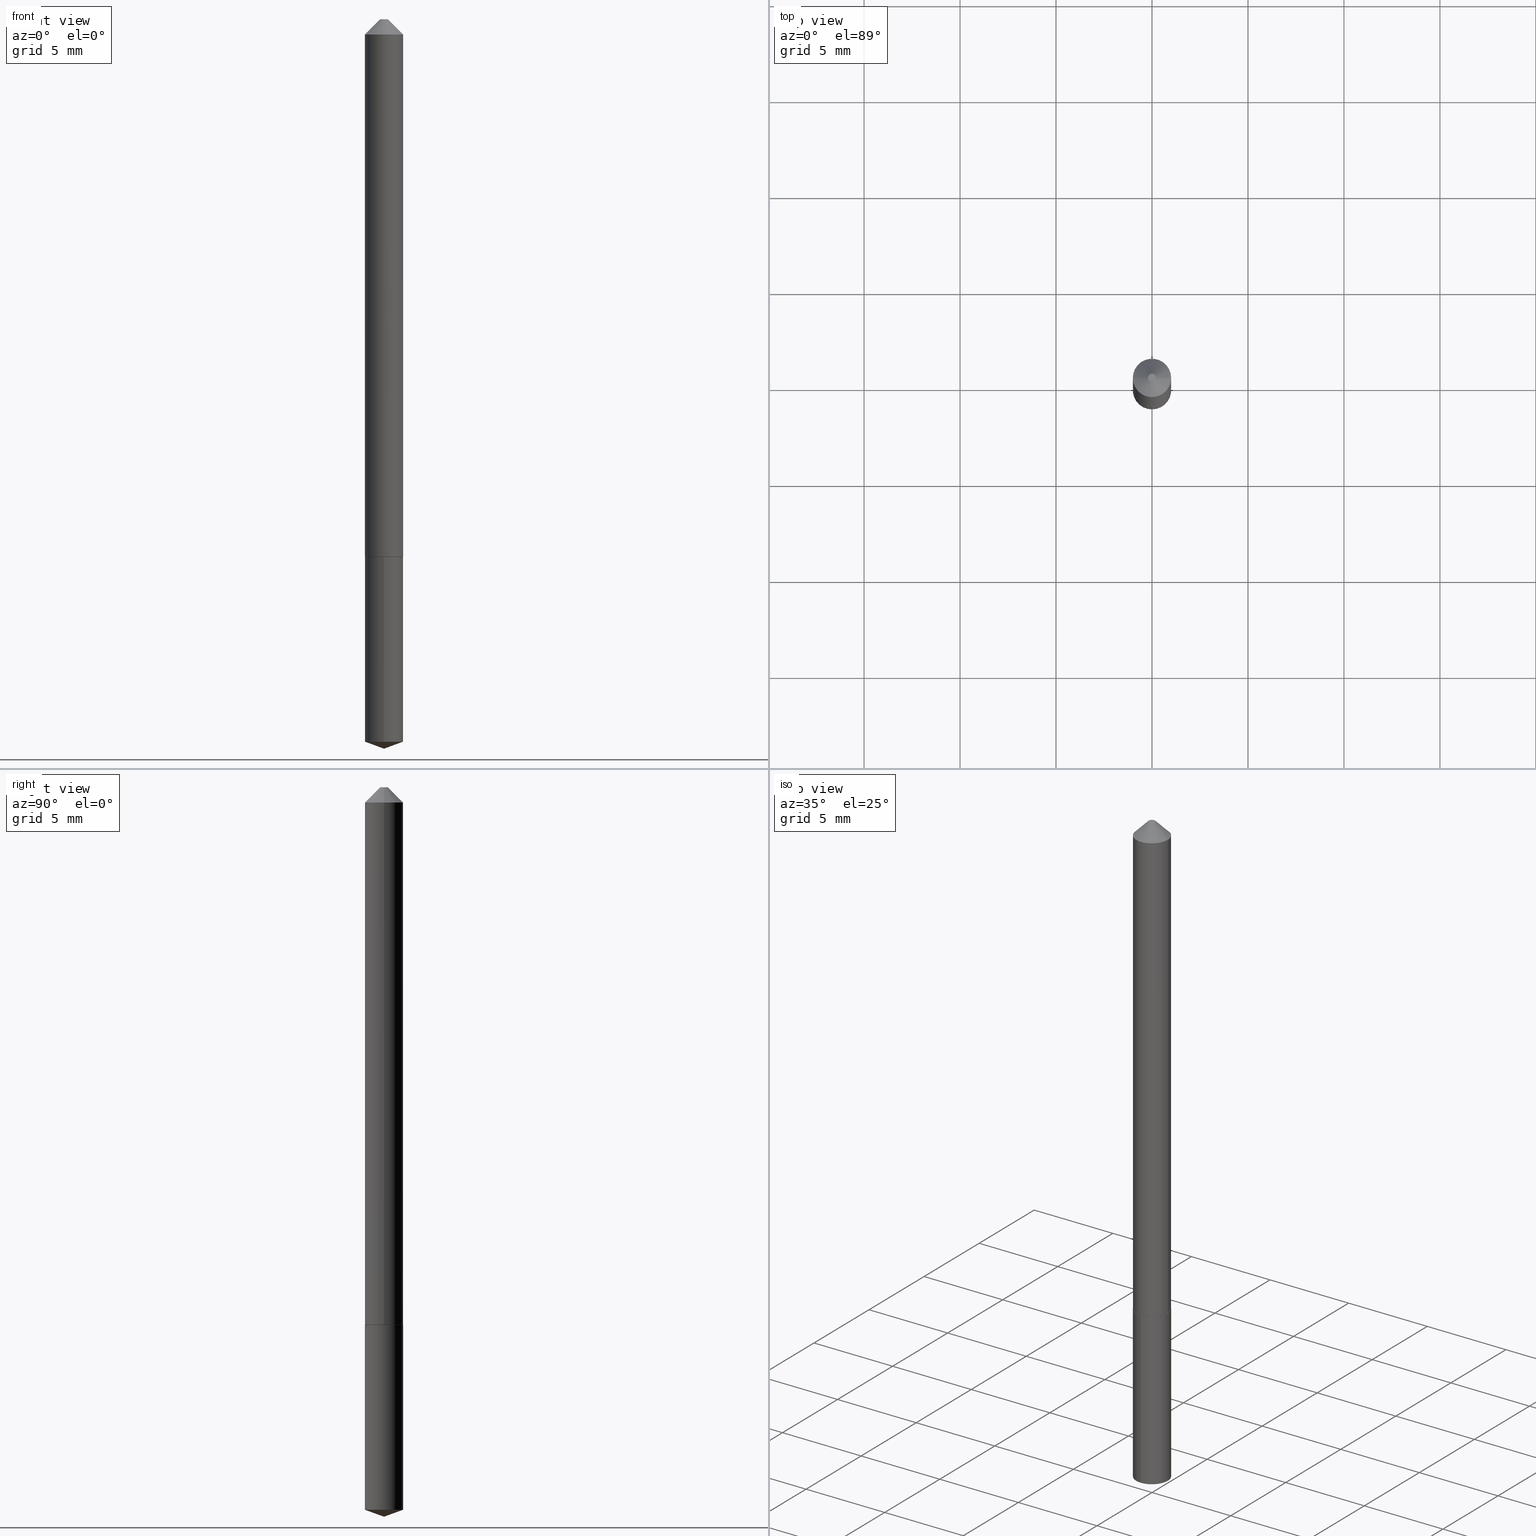
[diagram: canonical four-view strip — front | top / right | iso, engineering-drawing reading convention]
A machine part, canonical four-view strip (front | top / right | iso — engineering-drawing reading convention). The complete STEP part file that produces these views, byte-faithful:
ISO-10303-21;
HEADER;
FILE_DESCRIPTION (( 'STEP AP203' ),
    '1' );
FILE_NAME ('66005.STEP',
    '2024-04-23T11:37:47',
    ( '' ),
    ( '' ),
    'SwSTEP 2.0',
    'SolidWorks 2023',
    '' );
FILE_SCHEMA (( 'CONFIG_CONTROL_DESIGN' ));
ENDSEC;

DATA;
#1 = VERTEX_POINT ( 'NONE', #250 ) ;
#2 = ADVANCED_FACE ( 'NONE', ( #279 ), #142, .T. ) ;
#3 = FACE_OUTER_BOUND ( 'NONE', #236, .T. ) ;
#4 = AXIS2_PLACEMENT_3D ( 'NONE', #76, #204, #370 ) ;
#5 = ORIENTED_EDGE ( 'NONE', *, *, #151, .T. ) ;
#6 = ORIENTED_EDGE ( 'NONE', *, *, #266, .T. ) ;
#7 = PERSON_AND_ORGANIZATION ( #308, #355 ) ;
#8 = DESIGN_CONTEXT ( 'detailed design', #134, 'design' ) ;
#9 = PLANE ( 'NONE',  #66 ) ;
#10 = DIRECTION ( 'NONE',  ( -2.438088387897960049E-29, 3.491481338843145188E-15, 1.000000000000000000 ) ) ;
#11 = PERSON_AND_ORGANIZATION ( #308, #355 ) ;
#12 = CARTESIAN_POINT ( 'NONE',  ( 7.642090019328602662E-31, -1.091087918388490267E-16, -0.03125000000000020817 ) ) ;
#13 = APPROVAL_ROLE ( '' ) ;
#14 = EDGE_CURVE ( 'NONE', #25, #93, #382, .T. ) ;
#15 = ADVANCED_FACE ( 'NONE', ( #309 ), #219, .F. ) ;
#16 = CYLINDRICAL_SURFACE ( 'NONE', #126, 0.03935000000000000303 ) ;
#17 = AXIS2_PLACEMENT_3D ( 'NONE', #285, #187, #337 ) ;
#18 = CARTESIAN_POINT ( 'NONE',  ( 0.000000000000000000, 0.000000000000000000, 0.000000000000000000 ) ) ;
#19 = ADVANCED_FACE ( 'NONE', ( #246 ), #32, .T. ) ;
#20 = CARTESIAN_POINT ( 'NONE',  ( 2.694662077535402229E-29, -3.847263287271262604E-15, -1.101900000000000102 ) ) ;
#21 = AXIS2_PLACEMENT_3D ( 'NONE', #260, #234, #383 ) ;
#22 = CIRCLE ( 'NONE', #67, 0.03935000000000012793 ) ;
#23 = ORIENTED_EDGE ( 'NONE', *, *, #292, .F. ) ;
#24 = DIRECTION ( 'NONE',  ( 1.000000000000000000, -6.982962677686272233E-15, 0.000000000000000000 ) ) ;
#25 = VERTEX_POINT ( 'NONE', #63 ) ;
#26 =( CONVERSION_BASED_UNIT ( 'INCH', #145 ) LENGTH_UNIT ( ) NAMED_UNIT ( #321 ) );
#27 = ORIENTED_EDGE ( 'NONE', *, *, #354, .F. ) ;
#28 = AXIS2_PLACEMENT_3D ( 'NONE', #12, #89, #92 ) ;
#29 = ORIENTED_EDGE ( 'NONE', *, *, #232, .F. ) ;
#30 = DIRECTION ( 'NONE',  ( -2.444204879633820850E-29, 3.493291353602861629E-15, 1.000000000000000000 ) ) ;
#31 = MANIFOLD_SOLID_BREP ( 'Body-Move/Copy2[2]', #75 ) ;
#32 = CYLINDRICAL_SURFACE ( 'NONE', #231, 0.03935000000000007242 ) ;
#33 = DIRECTION ( 'NONE',  ( -2.444204879633820850E-29, 3.493291353602861629E-15, 1.000000000000000000 ) ) ;
#34 = CC_DESIGN_APPROVAL ( #248, ( #374 ) ) ;
#35 = APPLICATION_PROTOCOL_DEFINITION ( 'international standard', 'config_control_design', 1994, #209 ) ;
#36 = DIRECTION ( 'NONE',  ( 1.000000000000000000, -6.982962677686272233E-15, 0.000000000000000000 ) ) ;
#37 = FACE_OUTER_BOUND ( 'NONE', #171, .T. ) ;
#38 = EDGE_CURVE ( 'NONE', #347, #53, #366, .T. ) ;
#39 = CARTESIAN_POINT ( 'NONE',  ( 2.795985665216356337E-16, 0.03934999999999615194, -1.102400000000000047 ) ) ;
#40 = DIRECTION ( 'NONE',  ( 1.000000000000000000, 0.000000000000000000, 0.000000000000000000 ) ) ;
#41 = AXIS2_PLACEMENT_3D ( 'NONE', #20, #379, #108 ) ;
#42 = AXIS2_PLACEMENT_3D ( 'NONE', #60, #306, #389 ) ;
#43 = PERSON_AND_ORGANIZATION_ROLE ( 'creator' ) ;
#44 = CC_DESIGN_PERSON_AND_ORGANIZATION_ASSIGNMENT ( #11, #101, ( #374 ) ) ;
#45 = CARTESIAN_POINT ( 'NONE',  ( 2.695884811938494470E-29, -3.849009027940684107E-15, -1.102400000000000047 ) ) ;
#46 = VECTOR ( 'NONE', #330, 39.37007874015748143 ) ;
#47 = DIRECTION ( 'NONE',  ( -6.982962677686266711E-15, -1.000000000000000000, 6.942434545525446301E-15 ) ) ;
#48 = DIRECTION ( 'NONE',  ( -2.444204879633820850E-29, 3.493291353602861629E-15, 1.000000000000000000 ) ) ;
#49 = CARTESIAN_POINT ( 'NONE',  ( -0.03935000000000012793, -3.567664720749661631E-15, -1.101900000000000102 ) ) ;
#50 = LINE ( 'NONE', #210, #46 ) ;
#51 = EDGE_LOOP ( 'NONE', ( #301, #146 ) ) ;
#52 = CARTESIAN_POINT ( 'NONE',  ( 2.694662077535402229E-29, -3.847263287271262604E-15, -1.101900000000000102 ) ) ;
#53 = VERTEX_POINT ( 'NONE', #192 ) ;
#54 = ORIENTED_EDGE ( 'NONE', *, *, #203, .F. ) ;
#55 = EDGE_LOOP ( 'NONE', ( #329, #122, #300, #183 ) ) ;
#56 = VECTOR ( 'NONE', #33, 39.37007874015748143 ) ;
#57 = PRODUCT_RELATED_PRODUCT_CATEGORY ( 'detail', '', ( #252 ) ) ;
#58 = AXIS2_PLACEMENT_3D ( 'NONE', #62, #214, #178 ) ;
#59 = FACE_OUTER_BOUND ( 'NONE', #55, .T. ) ;
#60 = CARTESIAN_POINT ( 'NONE',  ( 7.642090019328602662E-31, -1.091087918388490267E-16, -0.03125000000000020817 ) ) ;
#61 = FACE_OUTER_BOUND ( 'NONE', #213, .T. ) ;
#62 = CARTESIAN_POINT ( 'NONE',  ( 0.000000000000000000, 0.000000000000000000, 0.000000000000000000 ) ) ;
#63 = CARTESIAN_POINT ( 'NONE',  ( -2.747795813669276519E-16, -0.03935000000000385412, -1.102399999999999824 ) ) ;
#64 = APPROVAL_STATUS ( 'not_yet_approved' ) ;
#65 = ORIENTED_EDGE ( 'NONE', *, *, #325, .T. ) ;
#66 = AXIS2_PLACEMENT_3D ( 'NONE', #159, #10, #307 ) ;
#67 = AXIS2_PLACEMENT_3D ( 'NONE', #185, #298, #368 ) ;
#68 = APPROVAL_ROLE ( '' ) ;
#69 = ADVANCED_FACE ( 'NONE', ( #71 ), #257, .T. ) ;
#70 = DIRECTION ( 'NONE',  ( -2.444204879633820850E-29, 3.493291353602861629E-15, 1.000000000000000000 ) ) ;
#71 = FACE_OUTER_BOUND ( 'NONE', #273, .T. ) ;
#72 = PERSON_AND_ORGANIZATION_ROLE ( 'design_owner' ) ;
#73 = EDGE_CURVE ( 'NONE', #390, #140, #194, .T. ) ;
#74 = CARTESIAN_POINT ( 'NONE',  ( 0.000000000000000000, 0.000000000000000000, 0.000000000000000000 ) ) ;
#75 = CLOSED_SHELL ( 'NONE', ( #197, #19, #241, #107, #2, #362, #123, #15 ) ) ;
#76 = CARTESIAN_POINT ( 'NONE',  ( 7.642090019328602662E-31, -1.091087918388490267E-16, -0.03125000000000020817 ) ) ;
#77 = DIRECTION ( 'NONE',  ( 1.000000000000000000, -6.982962677686267499E-15, 4.876176775795936914E-29 ) ) ;
#78 = CC_DESIGN_APPROVAL ( #128, ( #359 ) ) ;
#79 = ADVANCED_FACE ( 'NONE', ( #37 ), #114, .T. ) ;
#80 = CALENDAR_DATE ( 2024, 23, 4 ) ;
#81 = DIRECTION ( 'NONE',  ( -6.982962677686266711E-15, -1.000000000000000000, 3.471217272762723151E-15 ) ) ;
#82 = CARTESIAN_POINT ( 'NONE',  ( 3.623161811729646376E-29, -5.174286116107908423E-15, -1.481777771281625133 ) ) ;
#83 = ORIENTED_EDGE ( 'NONE', *, *, #169, .T. ) ;
#84 = CC_DESIGN_PERSON_AND_ORGANIZATION_ASSIGNMENT ( #313, #43, ( #374 ) ) ;
#85 = CARTESIAN_POINT ( 'NONE',  ( -0.03935000000000000997, -1.698587473033454879E-15, -0.03125000000000020817 ) ) ;
#86 = CIRCLE ( 'NONE', #28, 0.03935000000000000997 ) ;
#87 = ORIENTED_EDGE ( 'NONE', *, *, #73, .F. ) ;
#88 = PRODUCT_DEFINITION ( 'UNKNOWN', '', #374, #8 ) ;
#89 = DIRECTION ( 'NONE',  ( -2.445468806185136597E-29, 3.491481338843145583E-15, 1.000000000000000000 ) ) ;
#90 = ORIENTED_EDGE ( 'NONE', *, *, #203, .T. ) ;
#91 = VECTOR ( 'NONE', #384, 39.37007874015748143 ) ;
#92 = DIRECTION ( 'NONE',  ( 1.000000000000000000, -6.982962677686266711E-15, 0.000000000000000000 ) ) ;
#93 = VERTEX_POINT ( 'NONE', #39 ) ;
#94 = EDGE_LOOP ( 'NONE', ( #363, #297 ) ) ;
#95 = CARTESIAN_POINT ( 'NONE',  ( 0.000000000000000000, 0.000000000000000000, 0.000000000000000000 ) ) ;
#96 = EDGE_CURVE ( 'NONE', #53, #93, #281, .T. ) ;
#97 = DIRECTION ( 'NONE',  ( 2.438088387897960049E-29, -3.491481338843145188E-15, -1.000000000000000000 ) ) ;
#98 = AXIS2_PLACEMENT_3D ( 'NONE', #291, #356, #207 ) ;
#99 = PERSON_AND_ORGANIZATION_ROLE ( 'classification_officer' ) ;
#100 = DIRECTION ( 'NONE',  ( -2.445468806185136597E-29, 3.491481338843145583E-15, 1.000000000000000000 ) ) ;
#101 = PERSON_AND_ORGANIZATION_ROLE ( 'design_supplier' ) ;
#102 = APPROVAL_ROLE ( '' ) ;
#103 = LINE ( 'NONE', #351, #269 ) ;
#104 = AXIS2_PLACEMENT_3D ( 'NONE', #369, #97, #225 ) ;
#105 = LOCAL_TIME ( 7, 37, 47.00000000000000000, #158 ) ;
#106 = DIRECTION ( 'NONE',  ( -2.444204879633820850E-29, 3.493291353602861629E-15, 1.000000000000000000 ) ) ;
#107 = ADVANCED_FACE ( 'NONE', ( #61 ), #9, .F. ) ;
#108 = DIRECTION ( 'NONE',  ( 1.000000000000000000, -6.982962677686272233E-15, 0.000000000000000000 ) ) ;
#109 = VECTOR ( 'NONE', #173, 39.37007874015748143 ) ;
#110 = LOCAL_TIME ( 7, 37, 47.00000000000000000, #315 ) ;
#111 = UNCERTAINTY_MEASURE_WITH_UNIT (LENGTH_MEASURE( 1.000000000000000082E-05 ), #26, 'distance_accuracy_value', 'NONE');
#112 = ORIENTED_EDGE ( 'NONE', *, *, #325, .F. ) ;
#113 = CARTESIAN_POINT ( 'NONE',  ( 0.03935000000000000997, -3.838883732058036724E-16, -0.03125000000000020817 ) ) ;
#114 = CONICAL_SURFACE ( 'NONE', #224, 108.1684023407347865, 1.221730476396035492 ) ;
#115 = ORIENTED_EDGE ( 'NONE', *, *, #342, .F. ) ;
#116 = DIRECTION ( 'NONE',  ( -2.445468806185136597E-29, 3.491481338843145583E-15, 1.000000000000000000 ) ) ;
#117 = ORIENTED_EDGE ( 'NONE', *, *, #341, .F. ) ;
#118 = CARTESIAN_POINT ( 'NONE',  ( 2.695884811938494470E-29, -3.849009027940684107E-15, -1.102400000000000047 ) ) ;
#119 = AXIS2_PLACEMENT_3D ( 'NONE', #52, #322, #24 ) ;
#120 = ORIENTED_EDGE ( 'NONE', *, *, #137, .F. ) ;
#121 = ADVANCED_BREP_SHAPE_REPRESENTATION ( '66005', ( #299, #31, #167 ), #336 ) ;
#122 = ORIENTED_EDGE ( 'NONE', *, *, #287, .T. ) ;
#123 = ADVANCED_FACE ( 'NONE', ( #3 ), #290, .T. ) ;
#124 = CARTESIAN_POINT ( 'NONE',  ( 2.695884811938494470E-29, -3.849009027940684107E-15, -1.102400000000000047 ) ) ;
#125 = ORIENTED_EDGE ( 'NONE', *, *, #14, .F. ) ;
#126 = AXIS2_PLACEMENT_3D ( 'NONE', #45, #358, #259 ) ;
#127 = APPLICATION_PROTOCOL_DEFINITION ( 'international standard', 'config_control_design', 1994, #134 ) ;
#128 = APPROVAL ( #288, 'UNSPECIFIED' ) ;
#129 = CARTESIAN_POINT ( 'NONE',  ( 3.623161811729646376E-29, -5.174286116107908423E-15, -1.481777771281625133 ) ) ;
#130 = CALENDAR_DATE ( 2024, 23, 4 ) ;
#131 = COORDINATED_UNIVERSAL_TIME_OFFSET ( 5, 0, .BEHIND. ) ;
#132 = VECTOR ( 'NONE', #388, 39.37007874015748143 ) ;
#133 = PLANE ( 'NONE',  #21 ) ;
#134 = APPLICATION_CONTEXT ( 'configuration controlled 3d designs of mechanical parts and assemblies' ) ;
#135 = DIRECTION ( 'NONE',  ( -1.000000000000000000, 6.982962677686266711E-15, 0.000000000000000000 ) ) ;
#136 = CIRCLE ( 'NONE', #263, 0.03885000000000012055 ) ;
#137 = EDGE_CURVE ( 'NONE', #140, #243, #86, .T. ) ;
#138 = ORIENTED_EDGE ( 'NONE', *, *, #380, .F. ) ;
#139 = CARTESIAN_POINT ( 'NONE',  ( 0.03935000000000007242, -2.747795813669550648E-16, 1.918775561275704227E-30 ) ) ;
#140 = VERTEX_POINT ( 'NONE', #113 ) ;
#141 = VERTEX_POINT ( 'NONE', #150 ) ;
#142 = CONICAL_SURFACE ( 'NONE', #166, 0.03935000000000012793, 0.7853981633975591903 ) ;
#143 = VERTEX_POINT ( 'NONE', #283 ) ;
#144 = EDGE_CURVE ( 'NONE', #153, #243, #50, .T. ) ;
#145 = LENGTH_MEASURE_WITH_UNIT ( LENGTH_MEASURE( 0.02539999999999999897 ), #270 );
#146 = ORIENTED_EDGE ( 'NONE', *, *, #354, .T. ) ;
#147 = DIRECTION ( 'NONE',  ( -2.445468806185136597E-29, 3.491481338843145583E-15, 1.000000000000000000 ) ) ;
#148 = ORIENTED_EDGE ( 'NONE', *, *, #342, .T. ) ;
#149 = CARTESIAN_POINT ( 'NONE',  ( 3.659586061796191617E-29, -5.222322473583018434E-15, -1.496099999999999985 ) ) ;
#150 = CARTESIAN_POINT ( 'NONE',  ( 3.656774920420159006E-29, -5.226313194125241346E-15, -1.496099999999999985 ) ) ;
#151 = EDGE_CURVE ( 'NONE', #143, #243, #177, .T. ) ;
#152 = CIRCLE ( 'NONE', #98, 0.03885000000000012055 ) ;
#153 = VERTEX_POINT ( 'NONE', #333 ) ;
#154 = APPROVAL_PERSON_ORGANIZATION ( #350, #128, #13 ) ;
#155 = DATE_AND_TIME ( #226, #328 ) ;
#156 = ORIENTED_EDGE ( 'NONE', *, *, #317, .F. ) ;
#157 = CARTESIAN_POINT ( 'NONE',  ( -9.257037029521033046E-28, 1.323068378198018489E-13, 37.87397874015748300 ) ) ;
#158 = COORDINATED_UNIVERSAL_TIME_OFFSET ( 5, 0, .BEHIND. ) ;
#159 = CARTESIAN_POINT ( 'NONE',  ( 2.695884811938494470E-29, -3.849009027940684107E-15, -1.102400000000000047 ) ) ;
#160 = PERSON_AND_ORGANIZATION_ROLE ( 'creator' ) ;
#161 = DIRECTION ( 'NONE',  ( -2.444204879633820850E-29, 3.493291353602861629E-15, 1.000000000000000000 ) ) ;
#162 = DATE_AND_TIME ( #245, #105 ) ;
#163 = LINE ( 'NONE', #256, #182 ) ;
#164 = ADVANCED_FACE ( 'NONE', ( #59 ), #305, .T. ) ;
#165 = APPROVAL_DATE_TIME ( #293, #128 ) ;
#166 = AXIS2_PLACEMENT_3D ( 'NONE', #343, #100, #36 ) ;
#167 = AXIS2_PLACEMENT_3D ( 'NONE', #74, #193, #40 ) ;
#168 = DIRECTION ( 'NONE',  ( -0.7071067811866259545, 7.493145998870638150E-15, 0.7071067811864690800 ) ) ;
#169 = EDGE_CURVE ( 'NONE', #141, #347, #103, .T. ) ;
#170 = FACE_OUTER_BOUND ( 'NONE', #277, .T. ) ;
#171 = EDGE_LOOP ( 'NONE', ( #357, #179, #237 ) ) ;
#172 = CONICAL_SURFACE ( 'NONE', #119, 0.03935000000000012793, 0.7853981633975591903 ) ;
#173 = DIRECTION ( 'NONE',  ( 0.7071067811866259545, -2.468850131083078659E-15, 0.7071067811864690800 ) ) ;
#174 = EDGE_LOOP ( 'NONE', ( #23, #148, #6, #156 ) ) ;
#175 = CARTESIAN_POINT ( 'NONE',  ( 0.000000000000000000, 0.000000000000000000, 0.000000000000000000 ) ) ;
#176 = ORIENTED_EDGE ( 'NONE', *, *, #292, .T. ) ;
#177 = LINE ( 'NONE', #364, #132 ) ;
#178 = DIRECTION ( 'NONE',  ( 1.000000000000000000, -6.982962677686267499E-15, 4.876176775795936914E-29 ) ) ;
#179 = ORIENTED_EDGE ( 'NONE', *, *, #341, .T. ) ;
#180 = EDGE_CURVE ( 'NONE', #347, #25, #163, .T. ) ;
#181 = FACE_OUTER_BOUND ( 'NONE', #276, .T. ) ;
#182 = VECTOR ( 'NONE', #161, 39.37007874015748143 ) ;
#183 = ORIENTED_EDGE ( 'NONE', *, *, #220, .F. ) ;
#184 = DIRECTION ( 'NONE',  ( -6.982962677686266711E-15, -1.000000000000000000, 3.475157955500677616E-15 ) ) ;
#185 = CARTESIAN_POINT ( 'NONE',  ( 2.694662077535402229E-29, -3.847263287271262604E-15, -1.101900000000000102 ) ) ;
#186 = APPROVAL ( #64, 'UNSPECIFIED' ) ;
#187 = DIRECTION ( 'NONE',  ( -2.444204879633820850E-29, 3.493291353602861629E-15, 1.000000000000000000 ) ) ;
#188 = COORDINATED_UNIVERSAL_TIME_OFFSET ( 5, 0, .BEHIND. ) ;
#189 = AXIS2_PLACEMENT_3D ( 'NONE', #118, #30, #275 ) ;
#190 = DIRECTION ( 'NONE',  ( -2.444204879633820850E-29, 3.493291353602861629E-15, 1.000000000000000000 ) ) ;
#191 = COORDINATED_UNIVERSAL_TIME_OFFSET ( 5, 0, .BEHIND. ) ;
#192 = CARTESIAN_POINT ( 'NONE',  ( 2.795985665216355844E-16, 0.03934999999999482662, -1.481777771281625355 ) ) ;
#193 = DIRECTION ( 'NONE',  ( 0.000000000000000000, 0.000000000000000000, 1.000000000000000000 ) ) ;
#194 = LINE ( 'NONE', #312, #386 ) ;
#195 = DIRECTION ( 'NONE',  ( -6.561838499445211896E-15, -0.9396926207859088720, 0.3420201433256674917 ) ) ;
#196 = PERSON_AND_ORGANIZATION ( #308, #355 ) ;
#197 = ADVANCED_FACE ( 'NONE', ( #371 ), #302, .T. ) ;
#198 = CC_DESIGN_DATE_AND_TIME_ASSIGNMENT ( #155, #286, ( #88 ) ) ;
#199 = FACE_OUTER_BOUND ( 'NONE', #360, .T. ) ;
#200 = CLOSED_SHELL ( 'NONE', ( #227, #79, #69, #164, #267 ) ) ;
#201 = APPROVAL_PERSON_ORGANIZATION ( #7, #248, #102 ) ;
#202 = LINE ( 'NONE', #235, #109 ) ;
#203 = EDGE_CURVE ( 'NONE', #1, #385, #152, .T. ) ;
#204 = DIRECTION ( 'NONE',  ( 2.445468806185136597E-29, -3.491481338843145583E-15, -1.000000000000000000 ) ) ;
#205 = ORIENTED_EDGE ( 'NONE', *, *, #266, .F. ) ;
#206 = AXIS2_PLACEMENT_3D ( 'NONE', #18, #294, #77 ) ;
#207 = DIRECTION ( 'NONE',  ( 1.000000000000000000, -6.982962677686260400E-15, 0.000000000000000000 ) ) ;
#208 = ORIENTED_EDGE ( 'NONE', *, *, #144, .F. ) ;
#209 = APPLICATION_CONTEXT ( 'configuration controlled 3d designs of mechanical parts and assemblies' ) ;
#210 = CARTESIAN_POINT ( 'NONE',  ( -0.03935000000000007242, 2.795985665215999377E-16, -1.935600958015308795E-30 ) ) ;
#211 = LINE ( 'NONE', #149, #318 ) ;
#212 = CC_DESIGN_PERSON_AND_ORGANIZATION_ASSIGNMENT ( #373, #99, ( #359 ) ) ;
#213 = EDGE_LOOP ( 'NONE', ( #54, #115 ) ) ;
#214 = DIRECTION ( 'NONE',  ( -2.445468806185136597E-29, 3.491481338843145583E-15, 1.000000000000000000 ) ) ;
#215 = ORIENTED_EDGE ( 'NONE', *, *, #348, .T. ) ;
#216 = AXIS2_PLACEMENT_3D ( 'NONE', #124, #190, #375 ) ;
#217 = AXIS2_PLACEMENT_3D ( 'NONE', #82, #106, #47 ) ;
#218 = CC_DESIGN_APPROVAL ( #186, ( #88 ) ) ;
#219 = PLANE ( 'NONE',  #104 ) ;
#220 = EDGE_CURVE ( 'NONE', #93, #25, #249, .T. ) ;
#221 = CARTESIAN_POINT ( 'NONE',  ( 2.695884811938494470E-29, -3.849009027940684107E-15, -1.102400000000000047 ) ) ;
#222 = ORIENTED_EDGE ( 'NONE', *, *, #380, .T. ) ;
#223 = CARTESIAN_POINT ( 'NONE',  ( 2.795985665216263153E-16, 0.03934999999999615194, -1.102400000000000047 ) ) ;
#224 = AXIS2_PLACEMENT_3D ( 'NONE', #157, #316, #184 ) ;
#225 = DIRECTION ( 'NONE',  ( -1.000000000000000000, 6.982962677686265922E-15, -4.876176775795935793E-29 ) ) ;
#226 = CALENDAR_DATE ( 2024, 23, 4 ) ;
#227 = ADVANCED_FACE ( 'NONE', ( #199 ), #16, .T. ) ;
#228 = ORIENTED_EDGE ( 'NONE', *, *, #348, .F. ) ;
#229 = DATE_TIME_ROLE ( 'classification_date' ) ;
#230 = CARTESIAN_POINT ( 'NONE',  ( 7.642090019328602662E-31, -1.091087918388490267E-16, -0.03125000000000020817 ) ) ;
#231 = AXIS2_PLACEMENT_3D ( 'NONE', #95, #339, #345 ) ;
#232 = EDGE_CURVE ( 'NONE', #143, #390, #284, .T. ) ;
#233 = CARTESIAN_POINT ( 'NONE',  ( 2.695884811938494470E-29, -3.849009027940684107E-15, -1.102400000000000047 ) ) ;
#234 = DIRECTION ( 'NONE',  ( 2.444204879633820570E-29, -3.493291353602861629E-15, -1.000000000000000000 ) ) ;
#235 = CARTESIAN_POINT ( 'NONE',  ( 0.03935000000000012793, -4.122042868638218310E-15, -1.101900000000000102 ) ) ;
#236 = EDGE_LOOP ( 'NONE', ( #87, #29, #5, #215 ) ) ;
#237 = ORIENTED_EDGE ( 'NONE', *, *, #38, .F. ) ;
#238 = CIRCLE ( 'NONE', #58, 0.008100000000000001296 ) ;
#239 = DIRECTION ( 'NONE',  ( 1.000000000000000000, -6.982962677686265922E-15, 4.876176775795935793E-29 ) ) ;
#240 = EDGE_LOOP ( 'NONE', ( #27, #332, #377, #268 ) ) ;
#241 = ADVANCED_FACE ( 'NONE', ( #170 ), #172, .T. ) ;
#242 = ORIENTED_EDGE ( 'NONE', *, *, #287, .F. ) ;
#243 = VERTEX_POINT ( 'NONE', #85 ) ;
#244 = DIRECTION ( 'NONE',  ( -6.982962677686266711E-15, -1.000000000000000000, 6.942434545525446301E-15 ) ) ;
#245 = CALENDAR_DATE ( 2024, 23, 4 ) ;
#246 = FACE_OUTER_BOUND ( 'NONE', #372, .T. ) ;
#247 = SECURITY_CLASSIFICATION_LEVEL ( 'unclassified' ) ;
#248 = APPROVAL ( #378, 'UNSPECIFIED' ) ;
#249 = CIRCLE ( 'NONE', #261, 0.03935000000000000303 ) ;
#250 = CARTESIAN_POINT ( 'NONE',  ( 0.03885000000000012055, -4.120297127968796017E-15, -1.102400000000000047 ) ) ;
#251 = ORIENTED_EDGE ( 'NONE', *, *, #38, .T. ) ;
#252 = PRODUCT ( '66005', '66005', '', ( #278 ) ) ;
#253 = DATE_AND_TIME ( #130, #110 ) ;
#254 = CC_DESIGN_PERSON_AND_ORGANIZATION_ASSIGNMENT ( #349, #72, ( #252 ) ) ;
#255 = DATE_AND_TIME ( #282, #271 ) ;
#256 = CARTESIAN_POINT ( 'NONE',  ( -2.747795813669276519E-16, -0.03935000000000385412, -1.102399999999999824 ) ) ;
#257 = CONICAL_SURFACE ( 'NONE', #17, 108.1684023407347865, 1.221730476396035492 ) ;
#258 = CIRCLE ( 'NONE', #42, 0.03935000000000000997 ) ;
#259 = DIRECTION ( 'NONE',  ( -6.982962677686266711E-15, -1.000000000000000000, 3.471217272762723151E-15 ) ) ;
#260 = CARTESIAN_POINT ( 'NONE',  ( 2.695884811938494470E-29, -3.849009027940684107E-15, -1.102400000000000047 ) ) ;
#261 = AXIS2_PLACEMENT_3D ( 'NONE', #233, #48, #81 ) ;
#262 = APPROVAL_PERSON_ORGANIZATION ( #196, #186, #68 ) ;
#263 = AXIS2_PLACEMENT_3D ( 'NONE', #221, #116, #338 ) ;
#264 = FACE_OUTER_BOUND ( 'NONE', #94, .T. ) ;
#265 = ORIENTED_EDGE ( 'NONE', *, *, #317, .T. ) ;
#266 = EDGE_CURVE ( 'NONE', #1, #327, #202, .T. ) ;
#267 = ADVANCED_FACE ( 'NONE', ( #264 ), #133, .F. ) ;
#268 = ORIENTED_EDGE ( 'NONE', *, *, #151, .F. ) ;
#269 = VECTOR ( 'NONE', #195, 39.37007874015748854 ) ;
#270 =( LENGTH_UNIT ( ) NAMED_UNIT ( * ) SI_UNIT ( $, .METRE. ) );
#271 = LOCAL_TIME ( 7, 37, 47.00000000000000000, #191 ) ;
#272 =( NAMED_UNIT ( * ) SI_UNIT ( $, .STERADIAN. ) SOLID_ANGLE_UNIT ( ) );
#273 = EDGE_LOOP ( 'NONE', ( #117, #83, #242 ) ) ;
#274 = CARTESIAN_POINT ( 'NONE',  ( 0.008100000000000001296, -2.173197109165541179E-16, 9.568506885289319856E-31 ) ) ;
#275 = DIRECTION ( 'NONE',  ( -6.982962677686266711E-15, -1.000000000000000000, 3.471217272762723151E-15 ) ) ;
#276 = EDGE_LOOP ( 'NONE', ( #208, #265, #65, #228 ) ) ;
#277 = EDGE_LOOP ( 'NONE', ( #90, #176, #138, #205 ) ) ;
#278 = MECHANICAL_CONTEXT ( 'NONE', #209, 'mechanical' ) ;
#279 = FACE_OUTER_BOUND ( 'NONE', #174, .T. ) ;
#280 = CC_DESIGN_PERSON_AND_ORGANIZATION_ASSIGNMENT ( #346, #160, ( #88 ) ) ;
#281 = LINE ( 'NONE', #223, #56 ) ;
#282 = CALENDAR_DATE ( 2024, 23, 4 ) ;
#283 = CARTESIAN_POINT ( 'NONE',  ( -0.008100000000000001296, 1.111163936086822027E-16, -5.860437880252597544E-31 ) ) ;
#284 = CIRCLE ( 'NONE', #206, 0.008100000000000001296 ) ;
#285 = CARTESIAN_POINT ( 'NONE',  ( -9.257037029521033046E-28, 1.323068378198018489E-13, 37.87397874015748300 ) ) ;
#286 = DATE_TIME_ROLE ( 'creation_date' ) ;
#287 = EDGE_CURVE ( 'NONE', #53, #347, #334, .T. ) ;
#288 = APPROVAL_STATUS ( 'not_yet_approved' ) ;
#289 = LINE ( 'NONE', #49, #352 ) ;
#290 = CONICAL_SURFACE ( 'NONE', #4, 0.03935000000000000997, 0.7853981633974450594 ) ;
#291 = CARTESIAN_POINT ( 'NONE',  ( 2.695884811938494470E-29, -3.849009027940684107E-15, -1.102400000000000047 ) ) ;
#292 = EDGE_CURVE ( 'NONE', #385, #153, #289, .T. ) ;
#293 = DATE_AND_TIME ( #80, #387 ) ;
#294 = DIRECTION ( 'NONE',  ( -2.445468806185136597E-29, 3.491481338843145583E-15, 1.000000000000000000 ) ) ;
#295 = AXIS2_PLACEMENT_3D ( 'NONE', #230, #320, #135 ) ;
#296 = CC_DESIGN_DATE_AND_TIME_ASSIGNMENT ( #253, #229, ( #359 ) ) ;
#297 = ORIENTED_EDGE ( 'NONE', *, *, #220, .T. ) ;
#298 = DIRECTION ( 'NONE',  ( -2.445468806185136597E-29, 3.491481338843145583E-15, 1.000000000000000000 ) ) ;
#299 = MANIFOLD_SOLID_BREP ( 'Body-Move/Copy2[1]', #200 ) ;
#300 = ORIENTED_EDGE ( 'NONE', *, *, #180, .T. ) ;
#301 = ORIENTED_EDGE ( 'NONE', *, *, #232, .T. ) ;
#302 = CONICAL_SURFACE ( 'NONE', #295, 0.03935000000000000997, 0.7853981633974450594 ) ;
#303 = CYLINDRICAL_SURFACE ( 'NONE', #311, 0.03935000000000007242 ) ;
#304 = ORIENTED_EDGE ( 'NONE', *, *, #96, .T. ) ;
#305 = CYLINDRICAL_SURFACE ( 'NONE', #189, 0.03935000000000000303 ) ;
#306 = DIRECTION ( 'NONE',  ( -2.445468806185136597E-29, 3.491481338843145583E-15, 1.000000000000000000 ) ) ;
#307 = DIRECTION ( 'NONE',  ( 1.000000000000000000, -6.982962677686265922E-15, 4.876176775795935793E-29 ) ) ;
#308 = PERSON ( 'UNSPECIFIED', 'UNSPECIFIED', 'UNSPECIFIED', ('UNSPECIFIED'), ('UNSPECIFIED'), ('UNSPECIFIED') ) ;
#309 = FACE_OUTER_BOUND ( 'NONE', #51, .T. ) ;
#310 = AXIS2_PLACEMENT_3D ( 'NONE', #129, #70, #244 ) ;
#311 = AXIS2_PLACEMENT_3D ( 'NONE', #175, #147, #239 ) ;
#312 = CARTESIAN_POINT ( 'NONE',  ( 0.03935000000000000997, -3.790693880511588488E-16, -0.03125000000000020817 ) ) ;
#313 = PERSON_AND_ORGANIZATION ( #308, #355 ) ;
#314 = DIRECTION ( 'NONE',  ( 0.7071067811865452413, -7.319954787623248157E-15, -0.7071067811865497932 ) ) ;
#315 = COORDINATED_UNIVERSAL_TIME_OFFSET ( 5, 0, .BEHIND. ) ;
#316 = DIRECTION ( 'NONE',  ( -2.444204879633820850E-29, 3.493291353602861629E-15, 1.000000000000000000 ) ) ;
#317 = EDGE_CURVE ( 'NONE', #153, #327, #381, .T. ) ;
#318 = VECTOR ( 'NONE', #331, 39.37007874015748854 ) ;
#319 = APPROVAL_DATE_TIME ( #162, #186 ) ;
#320 = DIRECTION ( 'NONE',  ( 2.445468806185136597E-29, -3.491481338843145583E-15, -1.000000000000000000 ) ) ;
#321 = DIMENSIONAL_EXPONENTS ( 1.000000000000000000, 0.000000000000000000, 0.000000000000000000, 0.000000000000000000, 0.000000000000000000, 0.000000000000000000, 0.000000000000000000 ) ;
#322 = DIRECTION ( 'NONE',  ( -2.445468806185136597E-29, 3.491481338843145583E-15, 1.000000000000000000 ) ) ;
#323 = SHAPE_DEFINITION_REPRESENTATION ( #353, #121 ) ;
#324 = ORIENTED_EDGE ( 'NONE', *, *, #180, .F. ) ;
#325 = EDGE_CURVE ( 'NONE', #327, #140, #326, .T. ) ;
#326 = LINE ( 'NONE', #139, #91 ) ;
#327 = VERTEX_POINT ( 'NONE', #365 ) ;
#328 = LOCAL_TIME ( 7, 37, 47.00000000000000000, #188 ) ;
#329 = ORIENTED_EDGE ( 'NONE', *, *, #96, .F. ) ;
#330 = DIRECTION ( 'NONE',  ( -2.445468806185136877E-29, 3.491481338843145188E-15, 1.000000000000000000 ) ) ;
#331 = DIRECTION ( 'NONE',  ( 6.676917655467979173E-15, 0.9396926207859112035, 0.3420201433256609413 ) ) ;
#332 = ORIENTED_EDGE ( 'NONE', *, *, #73, .T. ) ;
#333 = CARTESIAN_POINT ( 'NONE',  ( -0.03935000000000012793, -3.567664720749661631E-15, -1.101900000000000102 ) ) ;
#334 = CIRCLE ( 'NONE', #217, 0.03935000000000000303 ) ;
#335 = CARTESIAN_POINT ( 'NONE',  ( -2.747795813669183828E-16, -0.03935000000000517251, -1.481777771281625133 ) ) ;
#336 =( GEOMETRIC_REPRESENTATION_CONTEXT ( 3 ) GLOBAL_UNCERTAINTY_ASSIGNED_CONTEXT ( ( #111 ) ) GLOBAL_UNIT_ASSIGNED_CONTEXT ( ( #26, #361, #272 ) ) REPRESENTATION_CONTEXT ( 'NONE', 'WORKASPACE' ) );
#337 = DIRECTION ( 'NONE',  ( -6.982962677686266711E-15, -1.000000000000000000, 3.475157955500677616E-15 ) ) ;
#338 = DIRECTION ( 'NONE',  ( 1.000000000000000000, -6.982962677686260400E-15, 0.000000000000000000 ) ) ;
#339 = DIRECTION ( 'NONE',  ( -2.445468806185136597E-29, 3.491481338843145583E-15, 1.000000000000000000 ) ) ;
#340 = CARTESIAN_POINT ( 'NONE',  ( -0.03885000000000012055, -3.570313947923772832E-15, -1.102400000000000047 ) ) ;
#341 = EDGE_CURVE ( 'NONE', #141, #53, #211, .T. ) ;
#342 = EDGE_CURVE ( 'NONE', #385, #1, #136, .T. ) ;
#343 = CARTESIAN_POINT ( 'NONE',  ( 2.694662077535402229E-29, -3.847263287271262604E-15, -1.101900000000000102 ) ) ;
#344 = CC_DESIGN_SECURITY_CLASSIFICATION ( #359, ( #374 ) ) ;
#345 = DIRECTION ( 'NONE',  ( 1.000000000000000000, -6.982962677686265922E-15, 4.876176775795935793E-29 ) ) ;
#346 = PERSON_AND_ORGANIZATION ( #308, #355 ) ;
#347 = VERTEX_POINT ( 'NONE', #335 ) ;
#348 = EDGE_CURVE ( 'NONE', #243, #140, #258, .T. ) ;
#349 = PERSON_AND_ORGANIZATION ( #308, #355 ) ;
#350 = PERSON_AND_ORGANIZATION ( #308, #355 ) ;
#351 = CARTESIAN_POINT ( 'NONE',  ( 3.656774920420159006E-29, -5.226313194125241346E-15, -1.496099999999999985 ) ) ;
#352 = VECTOR ( 'NONE', #168, 39.37007874015748143 ) ;
#353 = PRODUCT_DEFINITION_SHAPE ( 'NONE', 'NONE',  #88 ) ;
#354 = EDGE_CURVE ( 'NONE', #390, #143, #238, .T. ) ;
#355 = ORGANIZATION ( 'UNSPECIFIED', 'UNSPECIFIED', '' ) ;
#356 = DIRECTION ( 'NONE',  ( -2.445468806185136597E-29, 3.491481338843145583E-15, 1.000000000000000000 ) ) ;
#357 = ORIENTED_EDGE ( 'NONE', *, *, #169, .F. ) ;
#358 = DIRECTION ( 'NONE',  ( -2.444204879633820850E-29, 3.493291353602861629E-15, 1.000000000000000000 ) ) ;
#359 = SECURITY_CLASSIFICATION ( '', '', #247 ) ;
#360 = EDGE_LOOP ( 'NONE', ( #251, #304, #125, #324 ) ) ;
#361 =( NAMED_UNIT ( * ) PLANE_ANGLE_UNIT ( ) SI_UNIT ( $, .RADIAN. ) );
#362 = ADVANCED_FACE ( 'NONE', ( #181 ), #303, .T. ) ;
#363 = ORIENTED_EDGE ( 'NONE', *, *, #14, .T. ) ;
#364 = CARTESIAN_POINT ( 'NONE',  ( -0.03935000000000000997, 1.656707895281056437E-16, -0.03125000000000020817 ) ) ;
#365 = CARTESIAN_POINT ( 'NONE',  ( 0.03935000000000012793, -4.122042868638218310E-15, -1.101900000000000102 ) ) ;
#366 = CIRCLE ( 'NONE', #310, 0.03935000000000000303 ) ;
#367 = ORIENTED_EDGE ( 'NONE', *, *, #144, .T. ) ;
#368 = DIRECTION ( 'NONE',  ( 1.000000000000000000, -6.982962677686272233E-15, 0.000000000000000000 ) ) ;
#369 = CARTESIAN_POINT ( 'NONE',  ( 0.000000000000000000, 0.000000000000000000, 0.000000000000000000 ) ) ;
#370 = DIRECTION ( 'NONE',  ( -1.000000000000000000, 6.982962677686266711E-15, 0.000000000000000000 ) ) ;
#371 = FACE_OUTER_BOUND ( 'NONE', #240, .T. ) ;
#372 = EDGE_LOOP ( 'NONE', ( #222, #367, #120, #112 ) ) ;
#373 = PERSON_AND_ORGANIZATION ( #308, #355 ) ;
#374 = PRODUCT_DEFINITION_FORMATION_WITH_SPECIFIED_SOURCE ( 'ANY', '', #252, .NOT_KNOWN. ) ;
#375 = DIRECTION ( 'NONE',  ( -6.982962677686266711E-15, -1.000000000000000000, 3.471217272762723151E-15 ) ) ;
#376 = APPROVAL_DATE_TIME ( #255, #248 ) ;
#377 = ORIENTED_EDGE ( 'NONE', *, *, #137, .T. ) ;
#378 = APPROVAL_STATUS ( 'not_yet_approved' ) ;
#379 = DIRECTION ( 'NONE',  ( -2.445468806185136597E-29, 3.491481338843145583E-15, 1.000000000000000000 ) ) ;
#380 = EDGE_CURVE ( 'NONE', #327, #153, #22, .T. ) ;
#381 = CIRCLE ( 'NONE', #41, 0.03935000000000012793 ) ;
#382 = CIRCLE ( 'NONE', #216, 0.03935000000000000303 ) ;
#383 = DIRECTION ( 'NONE',  ( 6.982962677686265922E-15, 1.000000000000000000, -3.493291353602861629E-15 ) ) ;
#384 = DIRECTION ( 'NONE',  ( -2.445468806185136877E-29, 3.491481338843145188E-15, 1.000000000000000000 ) ) ;
#385 = VERTEX_POINT ( 'NONE', #340 ) ;
#386 = VECTOR ( 'NONE', #314, 39.37007874015748143 ) ;
#387 = LOCAL_TIME ( 7, 37, 47.00000000000000000, #131 ) ;
#388 = DIRECTION ( 'NONE',  ( -0.7071067811865452413, 2.468850131082233000E-15, -0.7071067811865497932 ) ) ;
#389 = DIRECTION ( 'NONE',  ( 1.000000000000000000, -6.982962677686266711E-15, 0.000000000000000000 ) ) ;
#390 = VERTEX_POINT ( 'NONE', #274 ) ;
ENDSEC;
END-ISO-10303-21;
